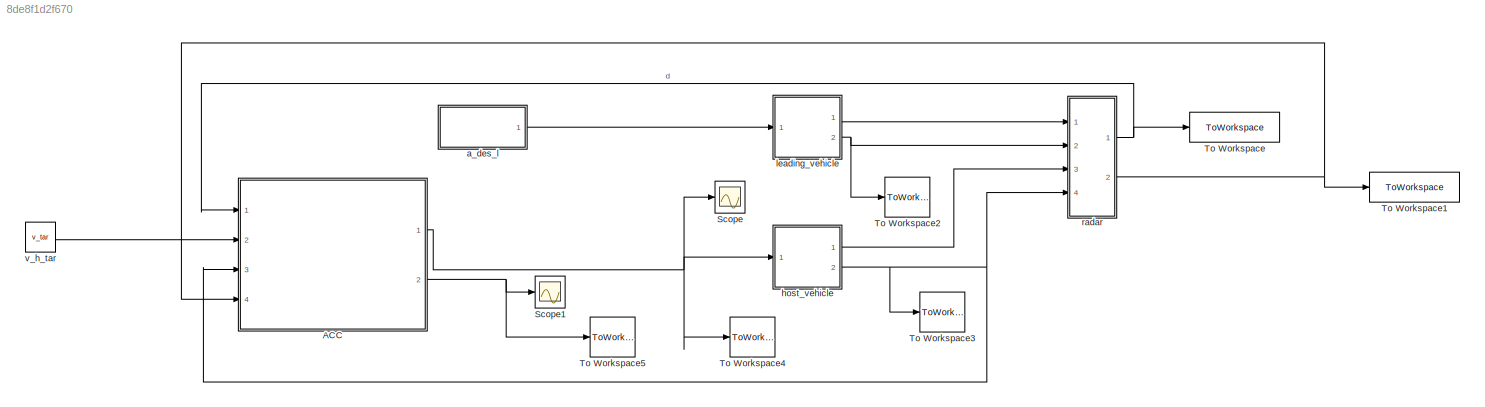
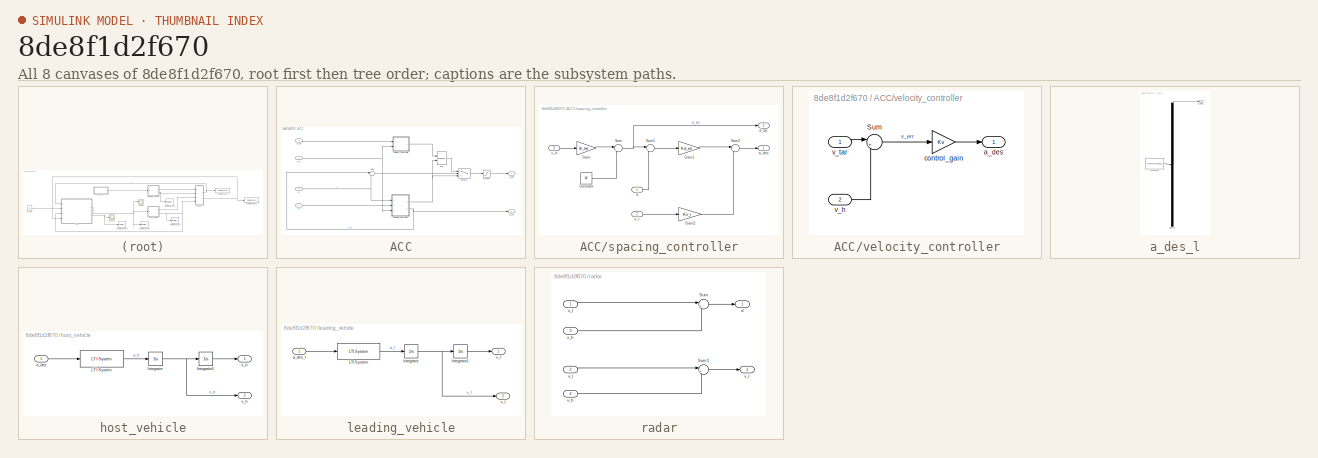
[diagram: thumbnail index - all 8 canvases of the model, root first then tree order]
MODEL slx_8de8f1d2f670
KIND model
CONFIG AbsTol = auto
CONFIG EnableMultiTasking = off
CONFIG FixedStep = auto
CONFIG MaxStep = auto
CONFIG MinStep = auto
CONFIG RelTol = 1e-3
CONFIG SampleTimeConstraint = Unconstrained
CONFIG Solver = VariableStepAuto
CONFIG SolverName = VariableStepAuto
CONFIG StartTime = 0.0
CONFIG StopTime = 60
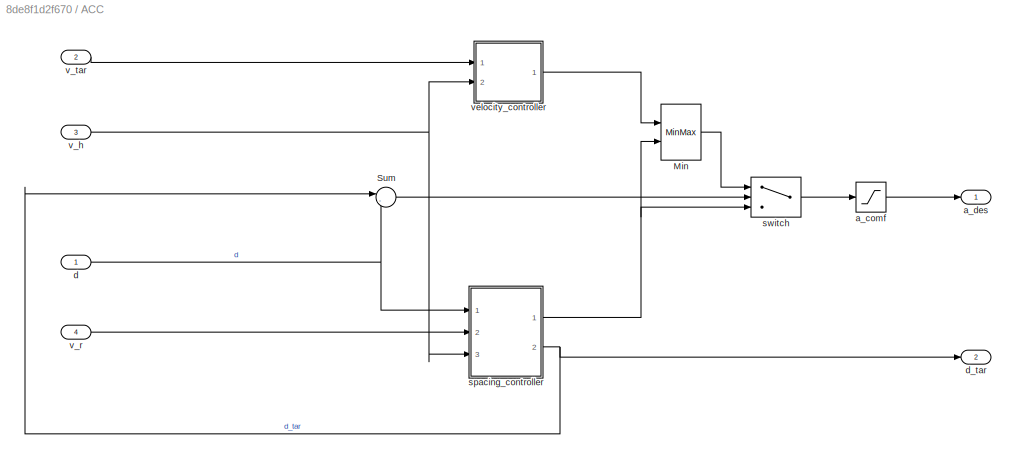
BLOCK [SubSystem] ACC
  Ports = [4, 2]
  RequestExecContextInheritance = off
BLOCK [MinMax] ACC/Min
  InputSameDT = off
  Inputs = 2
  Ports = [2, 1]
  SaturateOnIntegerOverflow = off
BLOCK [Sum] ACC/Sum
  IconShape = round
  InputSameDT = off
  Inputs = |-+
  OutDataTypeStr = Inherit: Inherit via internal rule
  Ports = [2, 1]
  SaturateOnIntegerOverflow = off
BLOCK [Saturate] ACC/a_comf
  InputPortMap = u0
  LowerLimit = -3
  Ports = [1, 1]
  UpperLimit = 5
BLOCK [Outport] ACC/a_des
  IconDisplay = Port number
BLOCK [Inport] ACC/d
  IconDisplay = Port number
BLOCK [Outport] ACC/d_tar
  IconDisplay = Port number
  Port = 2
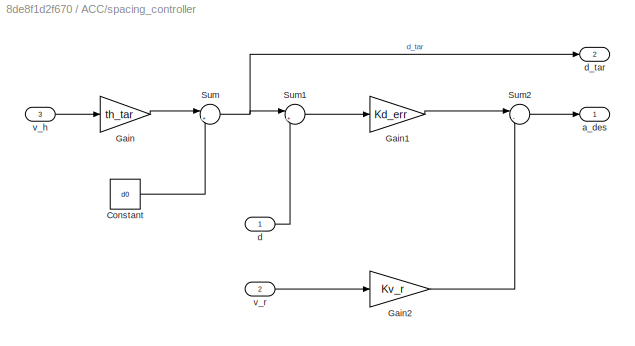
BLOCK [SubSystem] ACC/spacing_controller
  Ports = [3, 2]
  RequestExecContextInheritance = off
BLOCK [Constant] ACC/spacing_controller/Constant
  Value = d0
BLOCK [Gain] ACC/spacing_controller/Gain
  Gain = th_tar
  OutDataTypeStr = Inherit: Inherit via internal rule
  ParamDataTypeStr = Inherit: Inherit via internal rule
  SaturateOnIntegerOverflow = off
BLOCK [Gain] ACC/spacing_controller/Gain1
  Gain = Kd_err
  OutDataTypeStr = Inherit: Inherit via internal rule
  ParamDataTypeStr = Inherit: Inherit via internal rule
  SaturateOnIntegerOverflow = off
BLOCK [Gain] ACC/spacing_controller/Gain2
  Gain = Kv_r
  OutDataTypeStr = Inherit: Inherit via internal rule
  ParamDataTypeStr = Inherit: Inherit via internal rule
  SaturateOnIntegerOverflow = off
BLOCK [Sum] ACC/spacing_controller/Sum
  IconShape = round
  InputSameDT = off
  Inputs = |++
  OutDataTypeStr = Inherit: Inherit via internal rule
  Ports = [2, 1]
  SaturateOnIntegerOverflow = off
BLOCK [Sum] ACC/spacing_controller/Sum1
  IconShape = round
  InputSameDT = off
  Inputs = |+-
  OutDataTypeStr = Inherit: Inherit via internal rule
  Ports = [2, 1]
  SaturateOnIntegerOverflow = off
BLOCK [Sum] ACC/spacing_controller/Sum2
  IconShape = round
  InputSameDT = off
  Inputs = |-+
  OutDataTypeStr = Inherit: Inherit via internal rule
  Ports = [2, 1]
  SaturateOnIntegerOverflow = off
BLOCK [Outport] ACC/spacing_controller/a_des
  IconDisplay = Port number
BLOCK [Inport] ACC/spacing_controller/d
  IconDisplay = Port number
BLOCK [Outport] ACC/spacing_controller/d_tar
  IconDisplay = Port number
  Port = 2
BLOCK [Inport] ACC/spacing_controller/v_h
  IconDisplay = Port number
  Port = 3
BLOCK [Inport] ACC/spacing_controller/v_r
  IconDisplay = Port number
  Port = 2
BLOCK [Switch] ACC/switch
  Criteria = u2 > Threshold
  InputSameDT = off
  SaturateOnIntegerOverflow = off
BLOCK [Inport] ACC/v_h
  IconDisplay = Port number
  Port = 3
BLOCK [Inport] ACC/v_r
  IconDisplay = Port number
  Port = 4
BLOCK [Inport] ACC/v_tar
  IconDisplay = Port number
  Port = 2
BLOCK [SubSystem] ACC/velocity_controller
  Ports = [2, 1]
  RequestExecContextInheritance = off
BLOCK [Sum] ACC/velocity_controller/Sum
  IconShape = round
  InputSameDT = off
  Inputs = |+-
  OutDataTypeStr = Inherit: Inherit via internal rule
  Ports = [2, 1]
  SaturateOnIntegerOverflow = off
BLOCK [Outport] ACC/velocity_controller/a_des
  IconDisplay = Port number
BLOCK [Gain] ACC/velocity_controller/control_gain
  Gain = Kv
  OutDataTypeStr = Inherit: Inherit via internal rule
  ParamDataTypeStr = Inherit: Inherit via internal rule
  SaturateOnIntegerOverflow = off
BLOCK [Inport] ACC/velocity_controller/v_h
  IconDisplay = Port number
  Port = 2
BLOCK [Inport] ACC/velocity_controller/v_tar
  IconDisplay = Port number
BLOCK [Scope] Scope
  Floating = off
  NumInputPorts = 1
  Ports = [1]
  ScopeSpecificationString = Simulink.scopes.TimeScopeBlockCfg('CurrentConfiguration', extmgr.ConfigurationSet(extmgr.Configuration('Core','General UI',true),extmgr.Configuration('Core','Source UI',true),extmgr.Configuration('Sources','WiredSimulink',true),extmgr.Configuration('Visuals','Time Domain',true,'SerializedDisplays',{struct('MinYLimReal','-2.57776','MaxYLimReal','4.73086','YLabelReal','','MinYLimMag','0.00000','MaxY...<+1366ch>
BLOCK [Scope] Scope1
  Floating = off
  NumInputPorts = 1
  Ports = [1]
  ScopeSpecificationString = Simulink.scopes.TimeScopeBlockCfg('CurrentConfiguration', extmgr.ConfigurationSet(extmgr.Configuration('Core','General UI',true),extmgr.Configuration('Core','Source UI',true),extmgr.Configuration('Sources','WiredSimulink',true,'DataLoggingVariableName','ScopeData1'),extmgr.Configuration('Visuals','Time Domain',true,'SerializedDisplays',{struct('MinYLimReal','35.00000','MaxYLimReal','45.00000','YLa...<+1429ch>
BLOCK [ToWorkspace] To Workspace
  FixptAsFi = on
  MaxDataPoints = inf
  Ports = [1]
  SampleTime = -1
  SaveFormat = Timeseries
  VariableName = d
BLOCK [ToWorkspace] To Workspace1
  FixptAsFi = on
  MaxDataPoints = inf
  Ports = [1]
  SampleTime = -1
  SaveFormat = Timeseries
  VariableName = v_r
BLOCK [ToWorkspace] To Workspace2
  FixptAsFi = on
  MaxDataPoints = inf
  Ports = [1]
  SampleTime = -1
  SaveFormat = Timeseries
  VariableName = v_l
BLOCK [ToWorkspace] To Workspace3
  FixptAsFi = on
  MaxDataPoints = inf
  Ports = [1]
  SampleTime = -1
  SaveFormat = Timeseries
  VariableName = v_h
BLOCK [ToWorkspace] To Workspace4
  FixptAsFi = on
  MaxDataPoints = inf
  Ports = [1]
  SampleTime = -1
  SaveFormat = Timeseries
  VariableName = a_des
BLOCK [ToWorkspace] To Workspace5
  FixptAsFi = on
  MaxDataPoints = inf
  Ports = [1]
  SampleTime = -1
  SaveFormat = Timeseries
  VariableName = d_tar
BLOCK [SubSystem] a_des_l
  ClipboardFcn = sigbuilder_block('clipboard');
  CloseFcn = sigbuilder_block('close');
  ContinueFcn = sigbuilder_block('continue');
  CopyFcn = sigbuilder_block('copy');
  DeleteFcn = sigbuilder_block('delete');
  LoadFcn = sigbuilder_block('load');
  MaskHideContents = on
  ModelCloseFcn = sigbuilder_block('modelClose');
  NameChangeFcn = sigbuilder_block('namechange');
  OpenFcn = sigbuilder_block('open',[150 70 550.5 362.5 ]);
  PauseFcn = sigbuilder_block('pause');
  Ports = [0, 1]
  PreSaveFcn = sigbuilder_block('preSave');
  RequestExecContextInheritance = off
  StartFcn = sigbuilder_block('start');
  StopFcn = sigbuilder_block('stop');
  Tag = STV Subsys
BLOCK [Demux] a_des_l/Demux
  Outputs = 1
  Ports = [1, 1]
  Tag = STV Demux
BLOCK [FromWorkspace] a_des_l/FromWs
  SampleTime = 0
  Tag = STV FromWs
  VariableName = tuvar
  ZeroCross = on
BLOCK [Outport] a_des_l/a_des_l
  IconDisplay = Port number
  Tag = STV Outport
BLOCK [SubSystem] host_vehicle
  Ports = [1, 2]
  RequestExecContextInheritance = off
BLOCK [Integrator] host_vehicle/Integrator
  InitialCondition = vh0
  Ports = [1, 1]
BLOCK [Integrator] host_vehicle/Integrator1
  InitialCondition = xh0
  Ports = [1, 1]
BLOCK [Reference] host_vehicle/LTI System  REF=cstblocks/LTI System
  Ports = [1, 1]
  SourceBlock = cstblocks/LTI System
  SourceProductBaseCode = CT
  SourceProductName = Control System Toolbox
  SourceType = LTI Block
BLOCK [Inport] host_vehicle/a_des
  IconDisplay = Port number
BLOCK [Outport] host_vehicle/v_h
  IconDisplay = Port number
  Port = 2
BLOCK [Outport] host_vehicle/x_h
  IconDisplay = Port number
BLOCK [SubSystem] leading_vehicle
  Ports = [1, 2]
  RequestExecContextInheritance = off
BLOCK [Integrator] leading_vehicle/Integrator
  InitialCondition = vl0
  Ports = [1, 1]
BLOCK [Integrator] leading_vehicle/Integrator1
  InitialCondition = xl0
  Ports = [1, 1]
BLOCK [Reference] leading_vehicle/LTI System  REF=cstblocks/LTI System
  Ports = [1, 1]
  SourceBlock = cstblocks/LTI System
  SourceProductBaseCode = CT
  SourceProductName = Control System Toolbox
  SourceType = LTI Block
BLOCK [Inport] leading_vehicle/a_des_l
  IconDisplay = Port number
BLOCK [Outport] leading_vehicle/v_l
  IconDisplay = Port number
  Port = 2
BLOCK [Outport] leading_vehicle/x_l
  IconDisplay = Port number
BLOCK [SubSystem] radar
  Ports = [4, 2]
  RequestExecContextInheritance = off
BLOCK [Sum] radar/Sum
  IconShape = round
  InputSameDT = off
  Inputs = |+-
  OutDataTypeStr = Inherit: Inherit via internal rule
  Ports = [2, 1]
  SaturateOnIntegerOverflow = off
BLOCK [Sum] radar/Sum1
  IconShape = round
  InputSameDT = off
  Inputs = |+-
  OutDataTypeStr = Inherit: Inherit via internal rule
  Ports = [2, 1]
  SaturateOnIntegerOverflow = off
BLOCK [Outport] radar/d
  IconDisplay = Port number
BLOCK [Inport] radar/v_h
  IconDisplay = Port number
  Port = 4
BLOCK [Inport] radar/v_l
  IconDisplay = Port number
  Port = 2
BLOCK [Outport] radar/v_r
  IconDisplay = Port number
  Port = 2
BLOCK [Inport] radar/x_h
  IconDisplay = Port number
  Port = 3
BLOCK [Inport] radar/x_l
  IconDisplay = Port number
BLOCK [Constant] v_h_tar
  Value = v_tar
LINE ACC/Min:1 -> ACC/switch:1
LINE ACC/Sum:1 -> ACC/switch:2
LINE ACC/a_comf:1 -> ACC/a_des:1
NET ACC/d:1 -> ACC/Sum:2, ACC/spacing_controller:1
LINE ACC/spacing_controller/Constant:1 -> ACC/spacing_controller/Sum:2
LINE ACC/spacing_controller/Gain1:1 -> ACC/spacing_controller/Sum2:1
LINE ACC/spacing_controller/Gain2:1 -> ACC/spacing_controller/Sum2:2
LINE ACC/spacing_controller/Gain:1 -> ACC/spacing_controller/Sum:1
LINE ACC/spacing_controller/Sum1:1 -> ACC/spacing_controller/Gain1:1
LINE ACC/spacing_controller/Sum2:1 -> ACC/spacing_controller/a_des:1
NET ACC/spacing_controller/Sum:1 -> ACC/spacing_controller/Sum1:1, ACC/spacing_controller/d_tar:1
LINE ACC/spacing_controller/d:1 -> ACC/spacing_controller/Sum1:2
LINE ACC/spacing_controller/v_h:1 -> ACC/spacing_controller/Gain:1
LINE ACC/spacing_controller/v_r:1 -> ACC/spacing_controller/Gain2:1
NET ACC/spacing_controller:1 -> ACC/Min:2, ACC/switch:3
NET ACC/spacing_controller:2 -> ACC/Sum:1, ACC/d_tar:1
LINE ACC/switch:1 -> ACC/a_comf:1
NET ACC/v_h:1 -> ACC/spacing_controller:3, ACC/velocity_controller:2
LINE ACC/v_r:1 -> ACC/spacing_controller:2
LINE ACC/v_tar:1 -> ACC/velocity_controller:1
LINE ACC/velocity_controller/Sum:1 -> ACC/velocity_controller/control_gain:1
LINE ACC/velocity_controller/control_gain:1 -> ACC/velocity_controller/a_des:1
LINE ACC/velocity_controller/v_h:1 -> ACC/velocity_controller/Sum:2
LINE ACC/velocity_controller/v_tar:1 -> ACC/velocity_controller/Sum:1
LINE ACC/velocity_controller:1 -> ACC/Min:1
NET ACC:1 -> Scope:1, To Workspace4:1, host_vehicle:1
NET ACC:2 -> Scope1:1, To Workspace5:1
LINE a_des_l:1 -> leading_vehicle:1
LINE host_vehicle/Integrator1:1 -> host_vehicle/x_h:1
NET host_vehicle/Integrator:1 -> host_vehicle/Integrator1:1, host_vehicle/v_h:1
LINE host_vehicle/LTI System:1 -> host_vehicle/Integrator:1
LINE host_vehicle/a_des:1 -> host_vehicle/LTI System:1
LINE host_vehicle:1 -> radar:3
NET host_vehicle:2 -> ACC:3, To Workspace3:1, radar:4
LINE leading_vehicle/Integrator1:1 -> leading_vehicle/x_l:1
NET leading_vehicle/Integrator:1 -> leading_vehicle/Integrator1:1, leading_vehicle/v_l:1
LINE leading_vehicle/LTI System:1 -> leading_vehicle/Integrator:1
LINE leading_vehicle/a_des_l:1 -> leading_vehicle/LTI System:1
LINE leading_vehicle:1 -> radar:1
NET leading_vehicle:2 -> To Workspace2:1, radar:2
LINE radar/Sum1:1 -> radar/v_r:1
LINE radar/Sum:1 -> radar/d:1
LINE radar/v_h:1 -> radar/Sum1:2
LINE radar/v_l:1 -> radar/Sum1:1
LINE radar/x_h:1 -> radar/Sum:2
LINE radar/x_l:1 -> radar/Sum:1
NET radar:1 -> ACC:1, To Workspace:1
NET radar:2 -> ACC:4, To Workspace1:1
LINE v_h_tar:1 -> ACC:2
note: NET lines group one-source signal fan-out (src -> all destinations, sorted); 1:1 wires keep LINE
